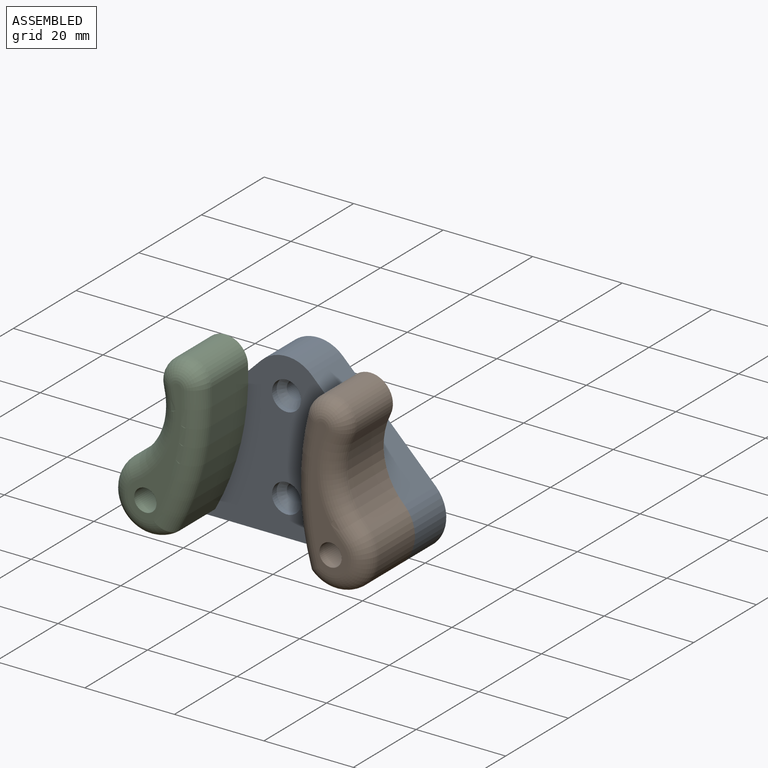
[diagram: assembled view]
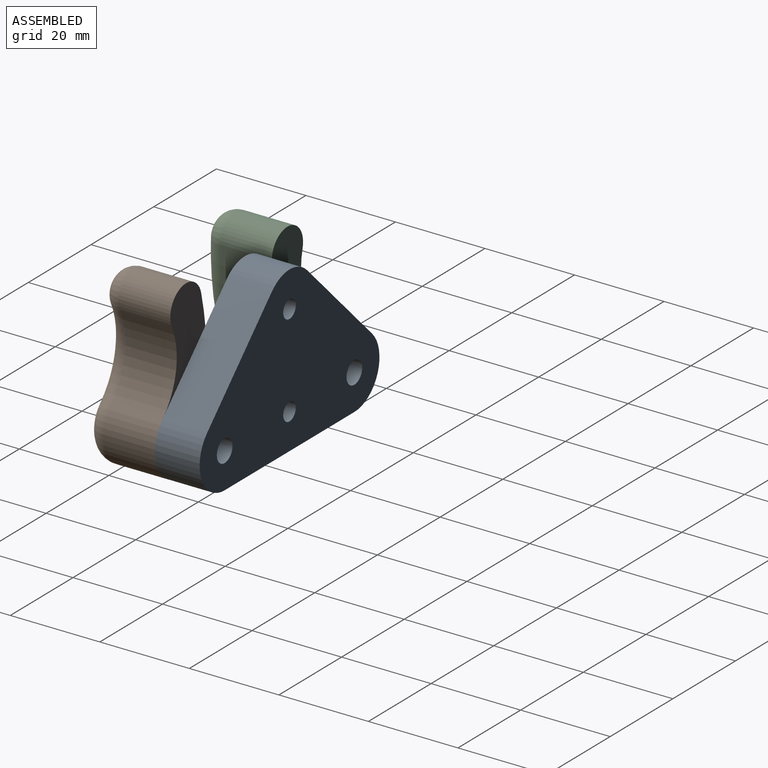
[diagram: assembled view, second angle]
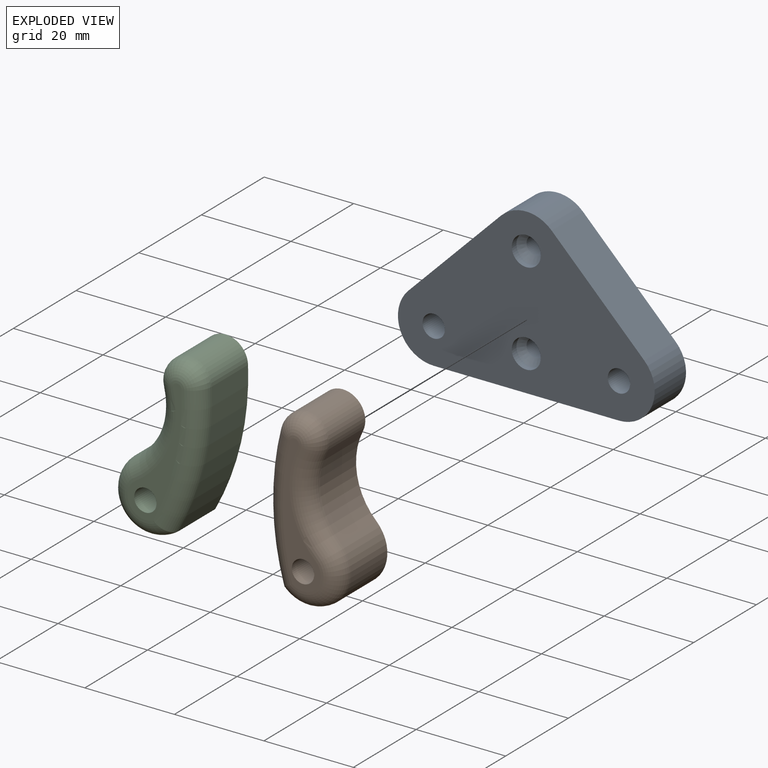
[diagram: exploded view]
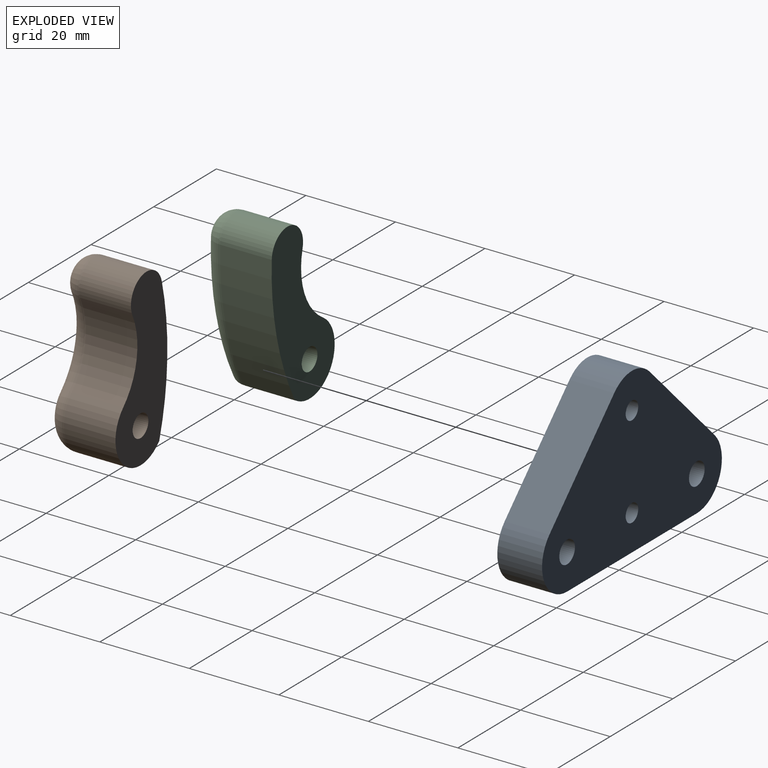
[diagram: exploded view, second angle]
ASSEMBLY  parts=3 mates=2
PART A: 16 faces, bbox 57.4x10x36.7 mm
  f0: plane 41.37x10mm, normal (0,0,-1), area 413.7mm2, adj f3,f4,f5,f7
  f1: plane 20.69x20.69mm, normal (0.71,0,0.71), area 292.5mm2, adj f3,f4,f5,f6
  f2: plane 20.69x20.69mm, normal (-0.71,0,0.71), area 292.5mm2, adj f3,f4,f6,f7
  f3: plane 57.37x36.69mm, normal (0,-1,0), area 1322.4mm2, adj f0,f1,f2,f5,f6,f7,f8,f9
  f4: plane 57.37x36.69mm, normal (0,1,0), area 1363.6mm2, adj f0,f1,f2,f5,f6,f7,f8,f9
  f5: cylinder r=8mm len=13.66mm, axis (0,1,0), area 188.5mm2, adj f0,f1,f3,f4
  f6: cylinder r=8mm len=11.31mm, axis (0,1,0), area 125.7mm2, adj f1,f2,f3,f4
  f7: cylinder r=8mm len=13.66mm, axis (0,1,0), area 188.5mm2, adj f0,f2,f3,f4
  f8: cylinder r=2.5mm len=10mm, axis (0,-1,0), area 157.1mm2, adj f3,f4
  f9: cylinder r=2.5mm len=10mm, axis (0,-1,0), area 157.1mm2, adj f3,f4
  f10: cylinder r=3.25mm len=6.5mm, axis (0,-1,0), area 30.6mm2, adj f3,f15
  f11: cylinder r=3.25mm len=6.5mm, axis (0,-1,0), area 30.6mm2, adj f3,f13
  f12: cylinder r=2mm len=7.06mm, axis (0,-1,0), area 88.7mm2, adj f4,f13
  f13: cone r=2mm half-angle=41deg, axis (0,-1,0), area 31.4mm2, adj f11,f12
  f14: cylinder r=2mm len=7.06mm, axis (0,-1,0), area 88.7mm2, adj f4,f15
  f15: cone r=2mm half-angle=41deg, axis (0,-1,0), area 31.4mm2, adj f10,f14
PART B: 11 faces, bbox 33.8x15.5x36.6 mm
  f0: cylinder r=15mm len=12.79mm, axis (0,1,0), area 217.5mm2, adj f1,f4,f6,f8
  f1: cylinder r=8mm len=15.87mm, axis (0,1,0), area 295.9mm2, adj f0,f2,f6,f10
  f2: cylinder r=60mm len=26.04mm, axis (0,1,0), area 371.6mm2, adj f1,f4,f6,f9
  f3: cylinder r=2.5mm len=15.5mm, axis (0,1,0), area 243.5mm2, adj f5,f6
  f4: cylinder r=5mm len=11.5mm, axis (0,1,0), area 193mm2, adj f0,f2,f6,f7
  f5: plane 25x20.76mm, normal (0,-1,0), area 82mm2, adj f3,f7,f8,f9,f10
  f6: plane 33x28.76mm, normal (0,1,0), area 406.6mm2, adj f0,f1,f2,f3,f4
  f7: torus R=1mm, axis (0,-1,0), area 74.8mm2, adj f4,f5,f8,f9
  f8: torus R=19mm, axis (0,-1,0), area 130.3mm2, adj f0,f5,f7,f10
  f9: torus R=56mm, axis (0,-1,0), area 195.9mm2, adj f2,f5,f7,f10
  f10: torus R=4mm, axis (0,-1,0), area 130.5mm2, adj f1,f5,f8,f9
PART C: 11 faces, bbox 33.8x15.5x36.6 mm
  f0: cylinder r=15mm len=12.79mm, axis (0,1,0), area 217.5mm2, adj f1,f4,f6,f8
  f1: cylinder r=8mm len=15.87mm, axis (0,1,0), area 295.9mm2, adj f0,f2,f6,f10
  f2: cylinder r=60mm len=26.04mm, axis (0,1,0), area 371.6mm2, adj f1,f4,f6,f9
  f3: cylinder r=2.5mm len=15.5mm, axis (0,1,0), area 243.5mm2, adj f5,f6
  f4: cylinder r=5mm len=11.5mm, axis (0,1,0), area 193mm2, adj f0,f2,f6,f7
  f5: plane 25x20.76mm, normal (0,-1,0), area 82mm2, adj f3,f7,f8,f9,f10
  f6: plane 33x28.76mm, normal (0,1,0), area 406.6mm2, adj f0,f1,f2,f3,f4
  f7: torus R=1mm, axis (0,-1,0), area 74.8mm2, adj f4,f5,f8,f9
  f8: torus R=19mm, axis (0,-1,0), area 130.3mm2, adj f0,f5,f7,f10
  f9: torus R=56mm, axis (0,-1,0), area 195.9mm2, adj f2,f5,f7,f10
  f10: torus R=4mm, axis (0,-1,0), area 130.5mm2, adj f1,f5,f8,f9
PLACE A t=(-5.65,-2.58,-14.79)mm fixed
PLACE B rot(axis=(0,1,0),33.9deg) t=(4.56,-2.58,-5.3)mm
PLACE C rot(axis=(0,-1,0),22.1deg) t=(-11.67,-2.58,-7.9)mm
MATE revolute A.f5 <-> B.f1  axis (0,-1,0) through (15.04,-7.58,-26.79)mm
MATE revolute C.f1 <-> A.f7  axis (0,1,0) through (-26.33,-7.58,-26.79)mm
